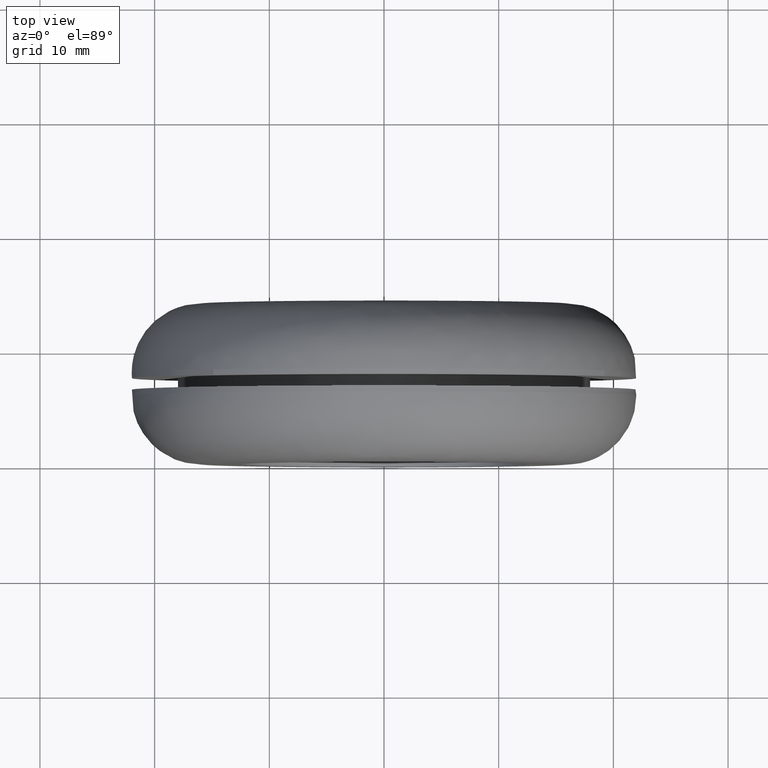
[diagram: clean part render]
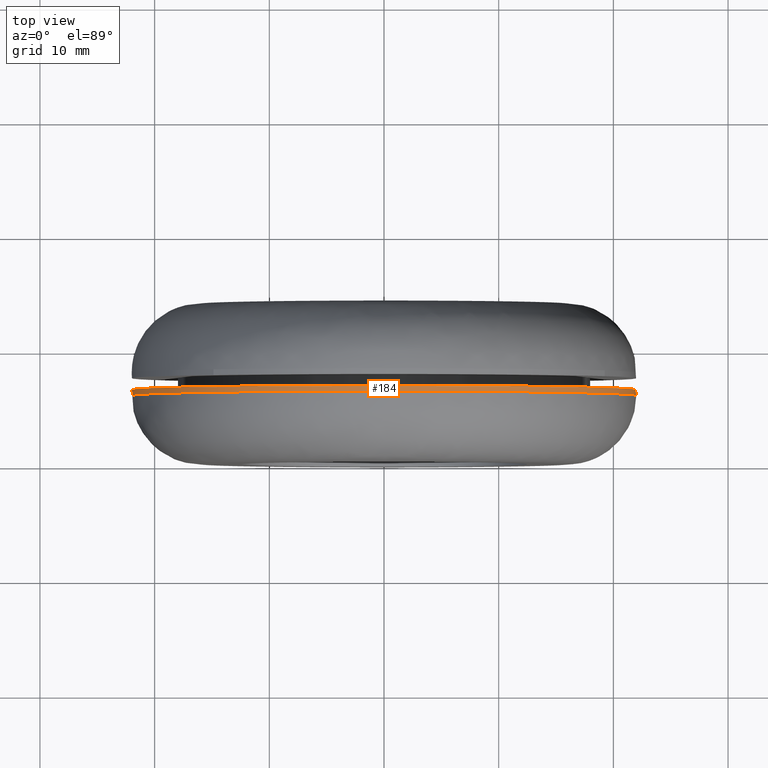
[diagram: same view with one face highlighted and labeled with its STEP entity id]
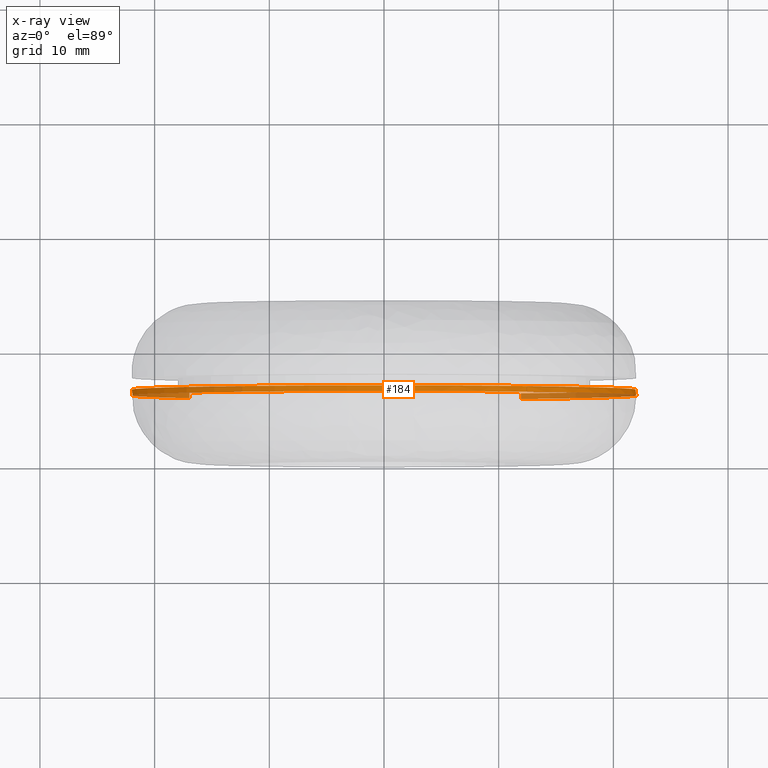
[diagram: x-ray of the same camera — body ghosted, the highlighted face saturated]
A machine part, top view. The second image highlights one B-rep face of the part: STEP entity #184.
The next image is the same camera in x-ray: the body ghosted, the highlighted face saturated — about 21% of this face is hidden behind the body in this view.
In plain terms, the highlighted face is a freeform B-spline surface patch.
Its self-contained STEP definition (entity closure, byte-faithful):
#44=CARTESIAN_POINT('',(11.940034953636161,6.512500000001182,-18.477975140852053));
#45=CARTESIAN_POINT('',(13.010386983719972,6.512500000001182,-17.786338716705046));
#46=CARTESIAN_POINT('',(13.993720846110801,6.512500000001182,-16.975740834529830));
#47=CARTESIAN_POINT('',(30.969461680640642,6.512500000001182,-2.982019988419031));
#48=CARTESIAN_POINT('',(16.975740834529830,6.512500000001182,13.993720846110801));
#49=CARTESIAN_POINT('',(2.982019988419031,6.512500000001182,30.969461680640642));
#50=CARTESIAN_POINT('',(-13.993720846110801,6.512500000001182,16.975740834529830));
#51=CARTESIAN_POINT('',(-30.969461680640642,6.512500000001182,2.982019988419031));
#52=CARTESIAN_POINT('',(-16.975740834529830,6.512500000001182,-13.993720846110801));
#53=CARTESIAN_POINT('',(11.940034953636161,5.987187499951535,-18.477975140852053));
#54=CARTESIAN_POINT('',(13.010386983719972,5.987187499951535,-17.786338716705046));
#55=CARTESIAN_POINT('',(13.993720846110801,5.987187499951535,-16.975740834529830));
#56=CARTESIAN_POINT('',(30.969461680640642,5.987187499951536,-2.982019988419031));
#57=CARTESIAN_POINT('',(16.975740834529830,5.987187499951535,13.993720846110801));
#58=CARTESIAN_POINT('',(2.982019988419031,5.987187499951536,30.969461680640642));
#59=CARTESIAN_POINT('',(-13.993720846110801,5.987187499951535,16.975740834529830));
#60=CARTESIAN_POINT('',(-30.969461680640642,5.987187499951536,2.982019988419031));
#61=CARTESIAN_POINT('',(-16.975740834529830,5.987187499951535,-13.993720846110801));
#69=(BOUNDED_SURFACE()B_SPLINE_SURFACE(2,1,((#44,#53),(#45,#54),(#46,#55),(#47,#56),(#48,#57),(#49,#58),(#50,#59),(#51,#60),(#52,#61)),.UNSPECIFIED.,.F.,.F.,.U.)B_SPLINE_SURFACE_WITH_KNOTS((3,2,2,2,3),(2,2),(0.0,2.916063479106587,39.366856967938944,75.817650456771304,112.268443945603710),(0.0,1.0),.UNSPECIFIED.)GEOMETRIC_REPRESENTATION_ITEM()RATIONAL_B_SPLINE_SURFACE(((0.956886118190660,0.956886118190660),(0.976568542494924,0.976568542494924),(1.0,1.0),(0.707106781186548,0.707106781186548),(1.0,1.0),(0.707106781186548,0.707106781186548),(1.0,1.0),(0.707106781186548,0.707106781186548),(1.0,1.0)))REPRESENTATION_ITEM('')SURFACE());
#70=CARTESIAN_POINT('',(11.940031599501340,5.999999999991699,-18.477977308213621));
#71=VERTEX_POINT('',#70);
#72=CARTESIAN_POINT('',(21.998262972483801,5.999999999952745,-0.276452877445878));
#73=VERTEX_POINT('',#72);
#74=CARTESIAN_POINT('',(11.940031599501340,5.999999999991699,-18.477977308213621));
#75=CARTESIAN_POINT('',(21.849997897103098,5.999999999978408,-12.074391635942851));
#76=CARTESIAN_POINT('',(21.998262972483801,5.999999999952745,-0.276452877445878));
#84=(BOUNDED_CURVE()B_SPLINE_CURVE(2,(#74,#75,#76),.UNSPECIFIED.,.F.,.U.)B_SPLINE_CURVE_WITH_KNOTS((3,3),(0.092934715246670,0.247784295921534),.UNSPECIFIED.)CURVE()GEOMETRIC_REPRESENTATION_ITEM()RATIONAL_B_SPLINE_CURVE((0.863190116287468,0.816652468351261,0.994854295643566))REPRESENTATION_ITEM(''));
#85=EDGE_CURVE('',#71,#73,#84,.T.);
#86=ORIENTED_EDGE('',*,*,#85,.F.);
#87=CARTESIAN_POINT('',(11.940031622767791,6.500000000000000,-18.477977293180370));
#88=VERTEX_POINT('',#87);
#89=CARTESIAN_POINT('',(11.940031622767791,6.500000000000000,-18.477977293180370));
#90=CARTESIAN_POINT('',(11.940031599501340,5.999999999991699,-18.477977308213621));
#91=QUASI_UNIFORM_CURVE('',1,(#89,#90),.UNSPECIFIED.,.F.,.U.);
#92=EDGE_CURVE('',#88,#71,#91,.T.);
#93=ORIENTED_EDGE('',*,*,#92,.F.);
#94=CARTESIAN_POINT('',(0.0,6.500000000000000,22.0));
#95=VERTEX_POINT('',#94);
#96=CARTESIAN_POINT('',(11.940031622767791,6.500000000000000,-18.477977293180373));
#97=CARTESIAN_POINT('',(22.000000000000004,6.500000000000000,-11.977463809352264));
#98=CARTESIAN_POINT('',(22.0,6.500000000000000,-3.673819E-016));
#99=CARTESIAN_POINT('',(22.000000000000007,6.500000000000001,22.000000000000007));
#100=CARTESIAN_POINT('',(0.0,6.500000000000000,22.0));
#108=(BOUNDED_CURVE()B_SPLINE_CURVE(2,(#96,#97,#98,#99,#100),.UNSPECIFIED.,.F.,.U.)B_SPLINE_CURVE_WITH_KNOTS((3,2,3),(0.092934715438809,0.250000000000000,0.500000000000000),.UNSPECIFIED.)CURVE()GEOMETRIC_REPRESENTATION_ITEM()RATIONAL_B_SPLINE_CURVE((0.863190116171980,0.815986572964088,1.0,0.707106781186548,1.0))REPRESENTATION_ITEM(''));
#109=EDGE_CURVE('',#88,#95,#108,.T.);
#110=ORIENTED_EDGE('',*,*,#109,.T.);
#111=CARTESIAN_POINT('',(-16.975742520003529,6.500000000000000,-13.993718801467210));
#112=VERTEX_POINT('',#111);
#113=CARTESIAN_POINT('',(0.0,6.500000000000000,22.0));
#114=CARTESIAN_POINT('',(-22.000000000000007,6.500000000000001,22.000000000000007));
#115=CARTESIAN_POINT('',(-22.0,6.500000000000000,-3.673819E-016));
#116=CARTESIAN_POINT('',(-22.000000000000007,6.500000000000001,-7.898805609008632));
#117=CARTESIAN_POINT('',(-16.975742520003532,6.500000000000000,-13.993718801467210));
#125=(BOUNDED_CURVE()B_SPLINE_CURVE(2,(#113,#114,#115,#116,#117),.UNSPECIFIED.,.F.,.U.)B_SPLINE_CURVE_WITH_KNOTS((3,2,3),(0.500000000000000,0.750000000000000,0.860504607643865),.UNSPECIFIED.)CURVE()GEOMETRIC_REPRESENTATION_ITEM()RATIONAL_B_SPLINE_CURVE((1.0,0.707106781186548,1.0,0.870535799093882,0.855522723988222))REPRESENTATION_ITEM(''));
#126=EDGE_CURVE('',#95,#112,#125,.T.);
#127=ORIENTED_EDGE('',*,*,#126,.T.);
#128=CARTESIAN_POINT('',(-16.975742585224250,5.999999999999643,-13.993718722348120));
#129=VERTEX_POINT('',#128);
#130=CARTESIAN_POINT('',(-16.975742520003529,6.500000000000000,-13.993718801467210));
#131=CARTESIAN_POINT('',(-16.975742585224250,5.999999999999643,-13.993718722348120));
#132=QUASI_UNIFORM_CURVE('',1,(#130,#131),.UNSPECIFIED.,.F.,.U.);
#133=EDGE_CURVE('',#112,#129,#132,.T.);
#134=ORIENTED_EDGE('',*,*,#133,.T.);
#135=CARTESIAN_POINT('',(-21.946444824489291,5.999999999953007,1.534131534662899));
#136=VERTEX_POINT('',#135);
#137=CARTESIAN_POINT('',(-21.946444824489284,5.999999999953007,1.534131534662899));
#138=CARTESIAN_POINT('',(-21.999999999999993,6.0,0.768000549246839));
#139=CARTESIAN_POINT('',(-22.0,6.0,-3.673819E-016));
#140=CARTESIAN_POINT('',(-21.999999999999996,5.999999999999999,-7.898805551131971));
#141=CARTESIAN_POINT('',(-16.975742585224253,5.999999999999643,-13.993718722348115));
#149=(BOUNDED_CURVE()B_SPLINE_CURVE(2,(#137,#138,#139,#140,#141),.UNSPECIFIED.,.F.,.U.)B_SPLINE_CURVE_WITH_KNOTS((3,2,3),(0.737833686535085,0.750000000000000,0.860504606938995),.UNSPECIFIED.)CURVE()GEOMETRIC_REPRESENTATION_ITEM()RATIONAL_B_SPLINE_CURVE((0.972879876386962,0.985746277152670,1.0,0.870535799919689,0.855522724179748))REPRESENTATION_ITEM(''));
#150=EDGE_CURVE('',#136,#129,#149,.T.);
#151=ORIENTED_EDGE('',*,*,#150,.F.);
#152=CARTESIAN_POINT('',(0.0,6.0,22.0));
#153=VERTEX_POINT('',#152);
#154=CARTESIAN_POINT('',(0.0,6.0,22.0));
#155=CARTESIAN_POINT('',(-20.515810639859708,6.0,22.000000000000004));
#156=CARTESIAN_POINT('',(-21.946444824489284,5.999999999953007,1.534131534662899));
#164=(BOUNDED_CURVE()B_SPLINE_CURVE(2,(#154,#155,#156),.UNSPECIFIED.,.F.,.U.)B_SPLINE_CURVE_WITH_KNOTS((3,3),(0.500000000000000,0.737833686535085),.UNSPECIFIED.)CURVE()GEOMETRIC_REPRESENTATION_ITEM()RATIONAL_B_SPLINE_CURVE((1.0,0.721360504033877,0.972879876386962))REPRESENTATION_ITEM(''));
#165=EDGE_CURVE('',#153,#136,#164,.T.);
#166=ORIENTED_EDGE('',*,*,#165,.F.);
#167=CARTESIAN_POINT('',(21.998262972483797,5.999999999952745,-0.276452877445878));
#168=CARTESIAN_POINT('',(22.0,6.000000000000001,-0.138231895833697));
#169=CARTESIAN_POINT('',(22.0,6.0,-3.673819E-016));
#170=CARTESIAN_POINT('',(22.000000000000007,6.0,22.000000000000007));
#171=CARTESIAN_POINT('',(0.0,6.0,22.0));
#179=(BOUNDED_CURVE()B_SPLINE_CURVE(2,(#167,#168,#169,#170,#171),.UNSPECIFIED.,.F.,.U.)B_SPLINE_CURVE_WITH_KNOTS((3,2,3),(0.247784295921534,0.250000000000000,0.500000000000000),.UNSPECIFIED.)CURVE()GEOMETRIC_REPRESENTATION_ITEM()RATIONAL_B_SPLINE_CURVE((0.994854295643566,0.997404141202080,1.0,0.707106781186548,1.0))REPRESENTATION_ITEM(''));
#180=EDGE_CURVE('',#73,#153,#179,.T.);
#181=ORIENTED_EDGE('',*,*,#180,.F.);
#182=EDGE_LOOP('',(#86,#93,#110,#127,#134,#151,#166,#181));
#183=FACE_OUTER_BOUND('',#182,.T.);
#184=ADVANCED_FACE('',(#183),#69,.T.);